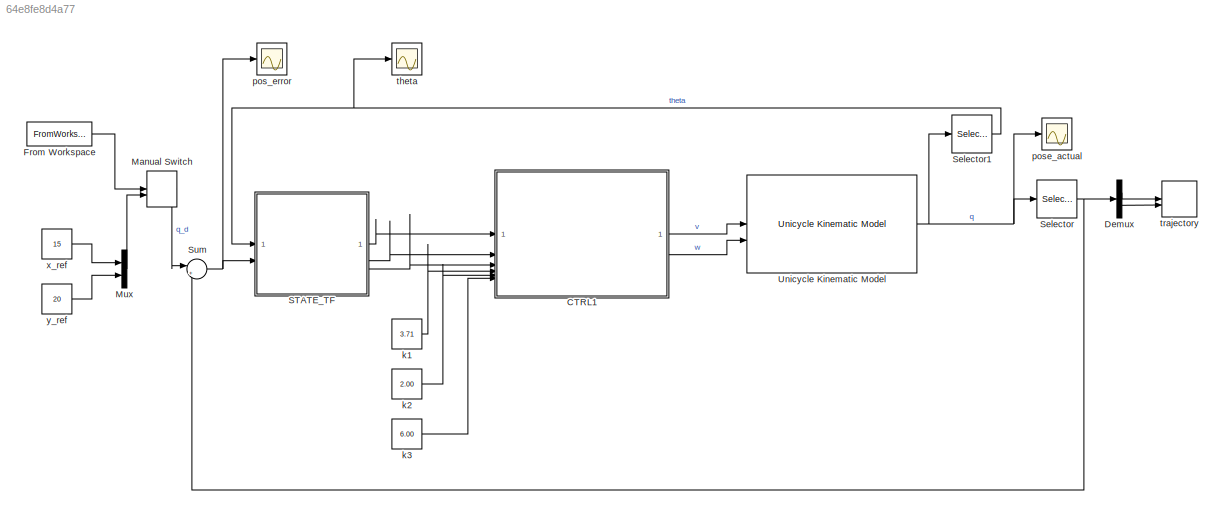
MODEL slx_64e8fe8d4a77
KIND model
CONFIG AbsTol = auto
CONFIG EnableMultiTasking = off
CONFIG FixedStep = auto
CONFIG MaxStep = auto
CONFIG MinStep = auto
CONFIG RelTol = 1e-3
CONFIG SampleTimeConstraint = Unconstrained
CONFIG SolverName = VariableStepAuto
CONFIG StartTime = 0.0
CONFIG StopTime = 45
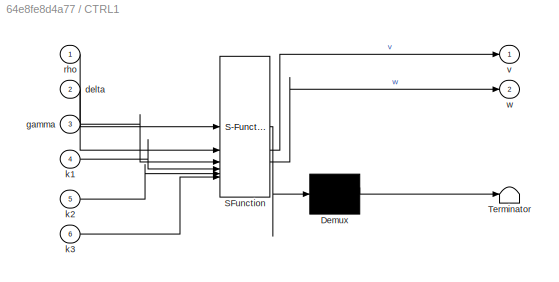
BLOCK [SubSystem] CTRL1
  ErrorFcn = Stateflow.Translate.translate
  PermitHierarchicalResolution = ExplicitOnly
  SFBlockType = MATLAB Function
  TreatAsAtomicUnit = on
BLOCK [Demux] CTRL1/ Demux 
  Outputs = 1
BLOCK [S-Function] CTRL1/ SFunction 
  EnableBusSupport = off
  FunctionName = sf_sfun
  PortCounts = [6 3]
  SFcnIsStateOwnerBlock = off
  SFunctionDeploymentMode = off
  Tag = Stateflow S-Function 3
BLOCK [Terminator] CTRL1/ Terminator 
BLOCK [Inport] CTRL1/delta
  Port = 2
BLOCK [Inport] CTRL1/gamma
  Port = 3
BLOCK [Inport] CTRL1/k1
  Port = 4
BLOCK [Inport] CTRL1/k2
  Port = 5
BLOCK [Inport] CTRL1/k3
  Port = 6
BLOCK [Inport] CTRL1/rho
BLOCK [Outport] CTRL1/v
BLOCK [Outport] CTRL1/w
  Port = 2
BLOCK [Demux] Demux
  Outputs = 2
BLOCK [FromWorkspace] From Workspace
  VariableName = q_goal
BLOCK [ManualSwitch] Manual Switch
BLOCK [Mux] Mux
  DisplayOption = bar
  Inputs = 2
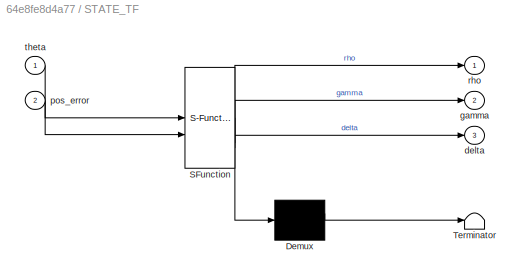
BLOCK [SubSystem] STATE_TF
  ErrorFcn = Stateflow.Translate.translate
  PermitHierarchicalResolution = ExplicitOnly
  SFBlockType = MATLAB Function
  TreatAsAtomicUnit = on
BLOCK [Demux] STATE_TF/ Demux 
  Outputs = 1
BLOCK [S-Function] STATE_TF/ SFunction 
  EnableBusSupport = off
  FunctionName = sf_sfun
  PortCounts = [2 4]
  SFcnIsStateOwnerBlock = off
  SFunctionDeploymentMode = off
  Tag = Stateflow S-Function 1
BLOCK [Terminator] STATE_TF/ Terminator 
BLOCK [Outport] STATE_TF/delta
  Port = 3
BLOCK [Outport] STATE_TF/gamma
  Port = 2
BLOCK [Inport] STATE_TF/pos_error
  Port = 2
BLOCK [Outport] STATE_TF/rho
BLOCK [Inport] STATE_TF/theta
BLOCK [Selector] Selector
  IndexOptions = Index vector (dialog)
  Indices = [1 2]
  InputPortWidth = 3
  OutputSizes = 1
BLOCK [Selector] Selector1
  IndexOptions = Index vector (dialog)
  Indices = [3]
  InputPortWidth = 3
  OutputSizes = 1
BLOCK [Sum] Sum
  Inputs = |+-
BLOCK [Reference] Unicycle Kinematic Model  REF=robotmobilelib/Unicycle Kinematic Model
  SourceBlock = robotmobilelib/Unicycle Kinematic Model
  SourceType = Unicycle Kinematic Model
BLOCK [Constant] k1
  Value = 3.71
BLOCK [Constant] k2
  Value = 2.00
BLOCK [Constant] k3
  Value = 6.00
BLOCK [Scope] pos_error
  ActiveDisplayYMaximum = 248.82865119862322
  ActiveDisplayYMinimum = -418.45288489633356
  DataLoggingVariableName = ScopeData1
  Floating = off
  GraphicalSettings = {"AxesScalingProperties":{"AlignXAxis":"Center","AlignYAxis":"Center","AutoScaleXAxisLimits":false,"AxesScaling":"Manual","AxesScalingNumUpdates":10,"ExpandOnly":true,"ScaleAxesLimitsAtStop":false,"XAxisDataRange":100,"YAxisDataRange":80},"DisplayProperties":{"ColorOrder":["auto","auto","auto","auto","auto","auto","auto","auto","auto","auto","auto","auto","auto","auto","auto","auto","auto","auto",...<+2113ch>
  MultipleDisplayCache = [{"MaxYLimMag":226.27478329942264,"MaxYLimReal":248.82865119862322,"MinYLimMag":0,"MinYLimReal":-418.45288489633356,"PlotAsMagnitudePhase":false,"ShowGrid":true,"ShowLegend":false,"Title":"%<SignalLabel>","YLabel":""}]
  NumInputPorts = 1
  ScopeFrameLocation = window
  WasSavedAsWebScope = on
  WindowPosition = [1715.000000,69.000000,811.000000,1310.000000,]
BLOCK [Scope] pose_actual
  ActiveDisplayYMaximum = 8.5892802665132866
  ActiveDisplayYMinimum = -37.155041353571882
  Floating = off
  GraphicalSettings = {"Style":{"BackgroundColor":[0.12941176470588237,0.12941176470588237,0.12941176470588237],"AxesColor":[0.07058823529411765,0.07058823529411765,0.07058823529411765],"LabelsColor":[0.8509803921568627,0.8509803921568627,0.8509803921568627],"PreserveColors":false,"Visible":[true,true,true],"LineStyle":["-","-","-"],"LineWidth":[1.5,1.5,1.5],"BarWidth":[0.9,0.9,0.9],"LineColor":["auto","auto","auto"],"...<+2200ch>
  MultipleDisplayCache = [{"MaxYLimMag":226.27478329942264,"MaxYLimReal":8.5892802665132866,"MinYLimMag":0,"MinYLimReal":-37.155041353571882,"PlotAsMagnitudePhase":false,"ShowGrid":true,"ShowLegend":false,"Title":"%<SignalLabel>","YLabel":""}]
  NumInputPorts = 1
  ScopeFrameLocation = window
  WasSavedAsWebScope = on
  WindowPosition = [1.000000,49.000000,1536.000000,793.000000,]
BLOCK [Scope] theta
  ActiveDisplayYMaximum = 1403.1503315532193
  ActiveDisplayYMinimum = -1826.061877140877
  DataLoggingVariableName = ScopeData2
  Floating = off
  GraphicalSettings = {"AxesScalingProperties":{"AlignXAxis":"Center","AlignYAxis":"Center","AutoScaleXAxisLimits":false,"AxesScaling":"Manual","AxesScalingNumUpdates":10,"ExpandOnly":true,"ScaleAxesLimitsAtStop":false,"XAxisDataRange":100,"YAxisDataRange":80},"DisplayProperties":{"ColorOrder":["auto","auto","auto","auto","auto","auto","auto","auto","auto","auto","auto","auto","auto","auto","auto","auto","auto","auto",...<+2010ch>
  MultipleDisplayCache = [{"MaxYLimMag":226.27478329942264,"MaxYLimReal":1403.1503315532193,"MinYLimMag":0,"MinYLimReal":-1826.061877140877,"PlotAsMagnitudePhase":false,"ShowGrid":true,"ShowLegend":false,"Title":"%<SignalLabel>","YLabel":""}]
  NumInputPorts = 1
  ScopeFrameLocation = window
  WasSavedAsWebScope = on
  WindowPosition = [1715.000000,69.000000,811.000000,1310.000000,]
BLOCK [Record] trajectory
  CompatibilityTag = XY
  FileSettingsInternal = {"entries":[{"content":{"excelSettings":{"content":{},"type":"Streamout.ExcelSettings"},"parquetSettings":{"content":{},"type":"Streamout.ParquetSettings"}},"type":"Streamout.FileSettingStorage","uuid":""}],"packageUris":["http:\/\/schema.mathworks.com\/mf0\/streamout_blocks\/R2020a"],"version":"1.0"}
  FrameSettings = [0, 0]
  Layout = [1 1]
  NumPorts = 2.0
  SignalsInternal = {"entries":[{"content":{"signals":[{"content":{"blockPath":[],"dimensions":[1],"domain":"","lineColor":"#a2142f","plots":[ 1 ],"port":1,"signalID":1,"signalName":"Demux:1"},"type":"RecordBlkView.Signal","uuid":""},{"content":{"blockPath":[],"dimensions":[1],"domain":"","lineColor":"#139fff","plots":[ 1 ],"port":2,"signalID":2,"signalName":"Demux:2"},"type":"RecordBlkView.Signal","uuid":""}]},"type...<+138ch>
  VisualizationBindings = {"xyplotplugin":{"info":[{"series":[{"bindingParametersList":[{"parameter":"X-Axis","signalID":1,"signalName":"Demux:1"},{"parameter":"Y-Axis","signalID":2,"signalName":"Demux:2"}],"seriesID":0}],"subplotID":1}]}}
BLOCK [Constant] x_ref
  Value = 15
BLOCK [Constant] y_ref
  Value = 20
LINE CTRL1:1 -> Unicycle Kinematic Model:1
LINE CTRL1:2 -> Unicycle Kinematic Model:2
LINE Demux:1 -> trajectory:1
LINE Demux:2 -> trajectory:2
LINE From Workspace:1 -> Manual Switch:1
LINE Manual Switch:1 -> Sum:1
LINE Mux:1 -> Manual Switch:2
LINE STATE_TF:1 -> CTRL1:1
LINE STATE_TF:2 -> CTRL1:2
LINE STATE_TF:3 -> CTRL1:3
NET Selector1:1 -> STATE_TF:1, theta:1
NET Selector:1 -> Demux:1, Sum:2
NET Sum:1 -> STATE_TF:2, pos_error:1
NET Unicycle Kinematic Model:1 -> Selector1:1, Selector:1, pose_actual:1
LINE k1:1 -> CTRL1:4
LINE k2:1 -> CTRL1:5
LINE k3:1 -> CTRL1:6
LINE x_ref:1 -> Mux:1
LINE y_ref:1 -> Mux:2
note: NET lines group one-source signal fan-out (src -> all destinations, sorted); 1:1 wires keep LINE
CHART STATE_TF states=1 transitions=1
  STATE_LABEL 'eML_blk_kernel()'
  STATE_LABEL 'SCRIPT:\nfunction[rho, gamma, delta] = state_tf(theta, pos_error)\n\nrho = sqrt(pos_error(1)^2 + pos_error(2)^2);\n\ntarget_angle = atan2(pos_error(2), pos_error(1));\ngamma = wrapToPi(target_angle - theta);\n\ndelta = wrapToPi(gamma + theta); %\n\nend'
CHART CTRL1 states=1 transitions=1
  STATE_LABEL 'eML_blk_kernel()'
  STATE_LABEL 'SCRIPT:\nfunction [v, w] = posture_regulation(rho, delta, gamma, k1, k2, k3)\n\nu = k1 * cos(gamma);\nv = rho * u;\n\n\nif abs(gamma) < 1e-4\n   sinc_val = 1;\nelse\n   sinc_val = sin(gamma) * cos(gamma) / gamma;\nend\n\nw = k2 * gamma + k1 * sinc_val * (gamma + k3 * delta);\n\nend'
CHART  states=0 transitions=0
CHART  states=0 transitions=0
